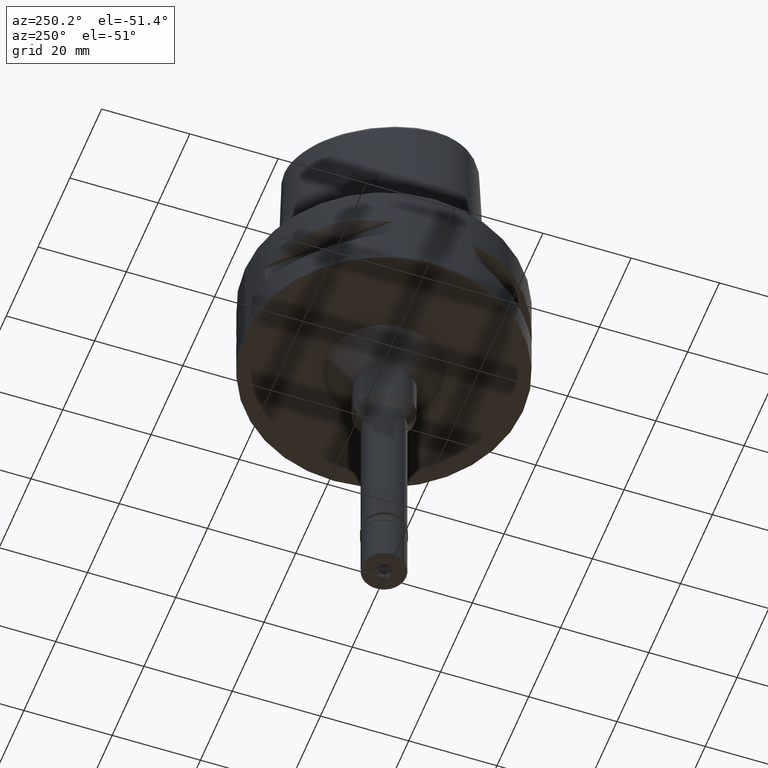
[diagram: clean part render]
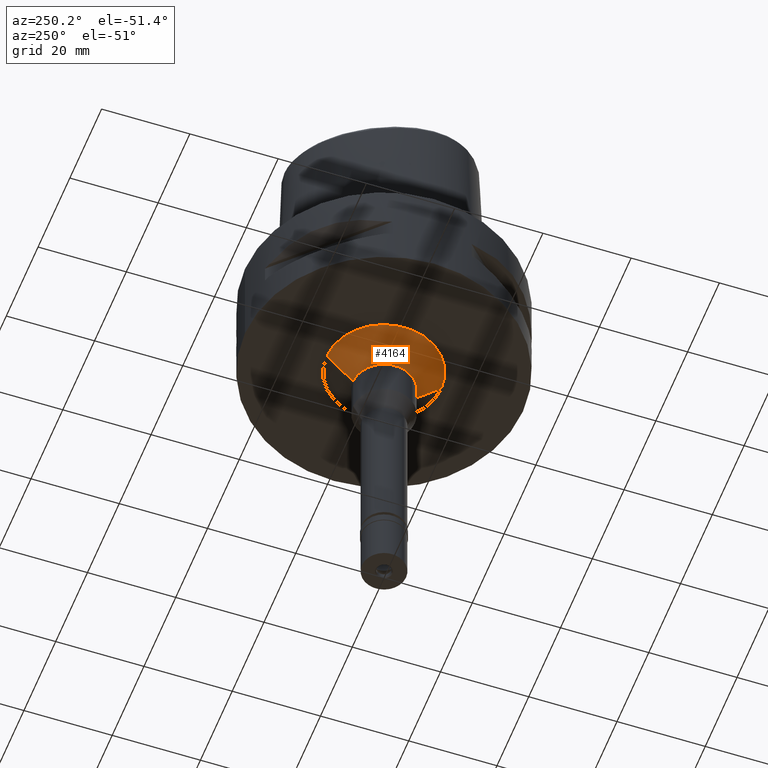
[diagram: same view with one face highlighted and labeled with its STEP entity id]
A machine part, auxiliary view. The second image highlights one B-rep face of the part: STEP entity #4164.
In plain terms, the highlighted conical surface has half-angle 45 deg.
Its self-contained STEP definition (entity closure, byte-faithful):
#95 = CARTESIAN_POINT ( 'NONE',  ( 0.0000000000000000000, 0.0000000000000000000, -22.00000000000000000 ) ) ;
#362 = FACE_OUTER_BOUND ( 'NONE', #3562, .T. ) ;
#658 = ORIENTED_EDGE ( 'NONE', *, *, #2675, .F. ) ;
#741 = CARTESIAN_POINT ( 'NONE',  ( 0.0000000000000000000, 0.0000000000000000000, -25.00000000000000000 ) ) ;
#775 = DIRECTION ( 'NONE',  ( 0.0000000000000000000, -1.000000000000000000, 0.0000000000000000000 ) ) ;
#833 = CONICAL_SURFACE ( 'NONE', #2611, 10.00000000000000000, 0.7853981633972997312 ) ;
#1029 = CIRCLE ( 'NONE', #3046, 13.00000000000000000 ) ;
#1030 = VECTOR ( 'NONE', #4762, 1000.000000000000114 ) ;
#1361 = CARTESIAN_POINT ( 'NONE',  ( 0.0000000000000000000, 13.00000000000000000, -22.00000000000000000 ) ) ;
#1443 = EDGE_CURVE ( 'NONE', #4036, #4644, #2133, .T. ) ;
#1512 = CIRCLE ( 'NONE', #4989, 7.000000000000000000 ) ;
#1535 = CARTESIAN_POINT ( 'NONE',  ( 0.0000000000000000000, 13.00000000000000000, -22.00000000000000000 ) ) ;
#1586 = DIRECTION ( 'NONE',  ( 0.0000000000000000000, 0.7071067811865474617, -0.7071067811865474617 ) ) ;
#2116 = CARTESIAN_POINT ( 'NONE',  ( 0.0000000000000000000, 0.0000000000000000000, -28.00000000000000000 ) ) ;
#2133 = LINE ( 'NONE', #1361, #1030 ) ;
#2196 = ORIENTED_EDGE ( 'NONE', *, *, #3491, .T. ) ;
#2396 = DIRECTION ( 'NONE',  ( 0.0000000000000000000, 0.0000000000000000000, -1.000000000000000000 ) ) ;
#2549 = DIRECTION ( 'NONE',  ( 0.0000000000000000000, -1.000000000000000000, 0.0000000000000000000 ) ) ;
#2611 = AXIS2_PLACEMENT_3D ( 'NONE', #741, #4600, #5005 ) ;
#2675 = EDGE_CURVE ( 'NONE', #2704, #3427, #3907, .T. ) ;
#2704 = VERTEX_POINT ( 'NONE', #3126 ) ;
#2829 = ORIENTED_EDGE ( 'NONE', *, *, #3084, .F. ) ;
#2962 = VECTOR ( 'NONE', #1586, 1000.000000000000114 ) ;
#3046 = AXIS2_PLACEMENT_3D ( 'NONE', #95, #2396, #775 ) ;
#3084 = EDGE_CURVE ( 'NONE', #3427, #4644, #1512, .T. ) ;
#3126 = CARTESIAN_POINT ( 'NONE',  ( 0.0000000000000000000, -13.00000000000000000, -22.00000000000000000 ) ) ;
#3166 = CARTESIAN_POINT ( 'NONE',  ( 0.0000000000000000000, -7.000000000000000000, -28.00000000000000000 ) ) ;
#3395 = CARTESIAN_POINT ( 'NONE',  ( 0.0000000000000000000, 7.000000000000000000, -28.00000000000000000 ) ) ;
#3427 = VERTEX_POINT ( 'NONE', #3166 ) ;
#3491 = EDGE_CURVE ( 'NONE', #2704, #4036, #1029, .T. ) ;
#3551 = CARTESIAN_POINT ( 'NONE',  ( 0.0000000000000000000, -13.00000000000000000, -22.00000000000000000 ) ) ;
#3562 = EDGE_LOOP ( 'NONE', ( #2829, #658, #2196, #4663 ) ) ;
#3907 = LINE ( 'NONE', #3551, #2962 ) ;
#4036 = VERTEX_POINT ( 'NONE', #1535 ) ;
#4164 = ADVANCED_FACE ( 'NONE', ( #362 ), #833, .T. ) ;
#4600 = DIRECTION ( 'NONE',  ( 0.0000000000000000000, 0.0000000000000000000, 1.000000000000000000 ) ) ;
#4644 = VERTEX_POINT ( 'NONE', #3395 ) ;
#4663 = ORIENTED_EDGE ( 'NONE', *, *, #1443, .T. ) ;
#4762 = DIRECTION ( 'NONE',  ( 0.0000000000000000000, -0.7071067811865474617, -0.7071067811865474617 ) ) ;
#4790 = DIRECTION ( 'NONE',  ( 0.0000000000000000000, 0.0000000000000000000, -1.000000000000000000 ) ) ;
#4989 = AXIS2_PLACEMENT_3D ( 'NONE', #2116, #4790, #2549 ) ;
#5005 = DIRECTION ( 'NONE',  ( 0.0000000000000000000, 1.000000000000000000, 0.0000000000000000000 ) ) ;